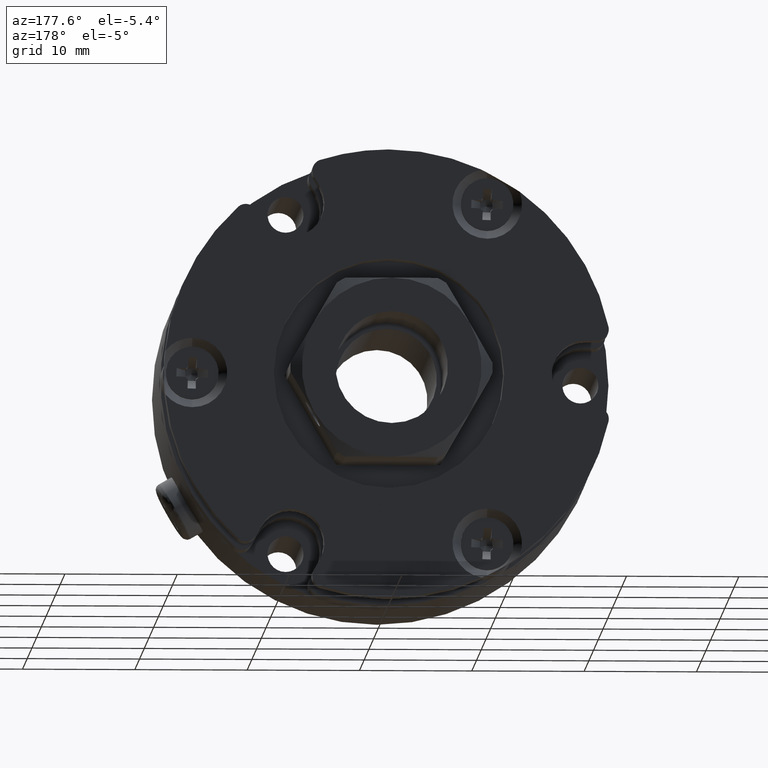
[diagram: clean part render]
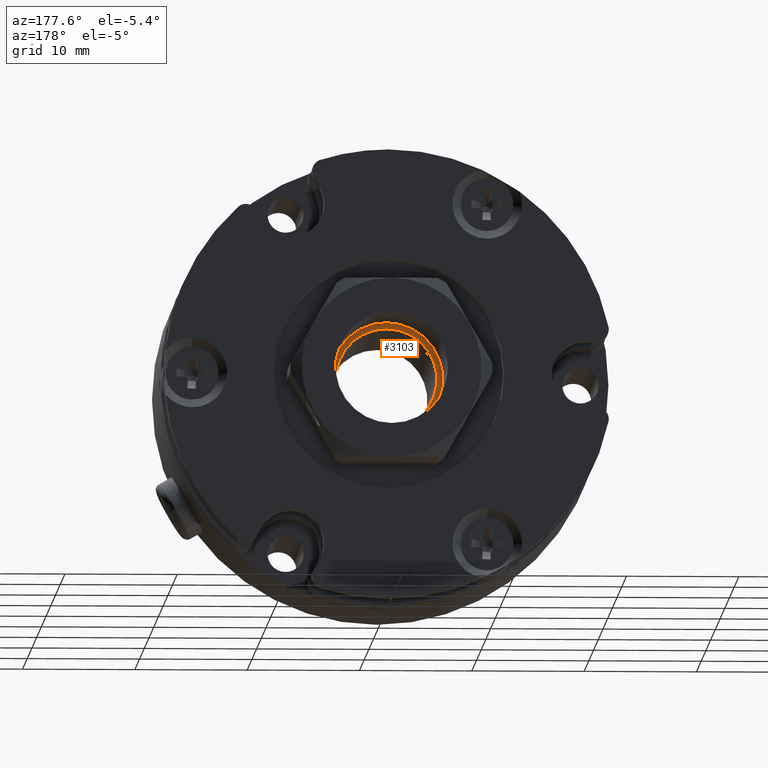
[diagram: same view with one face highlighted and labeled with its STEP entity id]
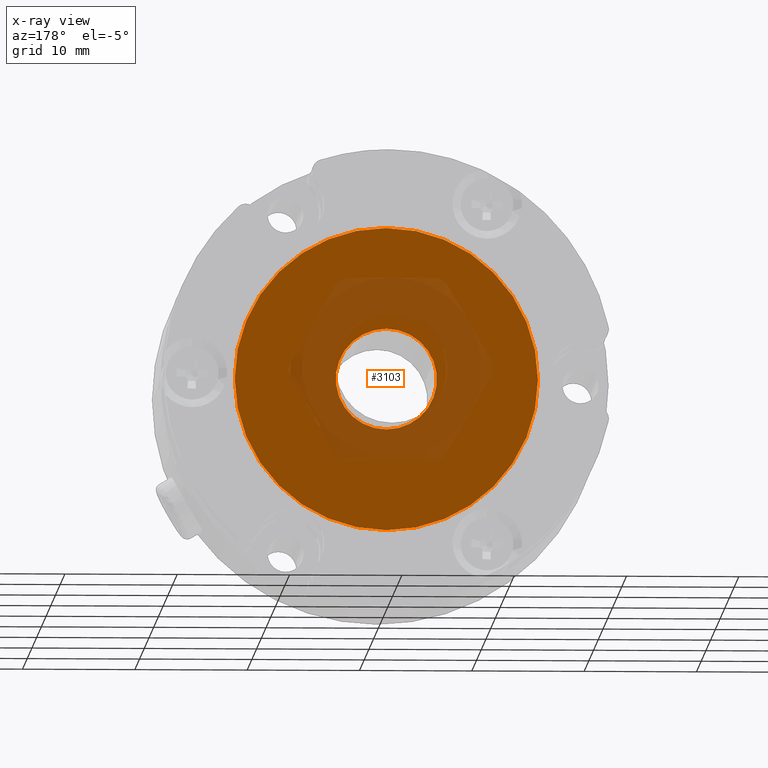
[diagram: x-ray of the same camera — body ghosted, the highlighted face saturated]
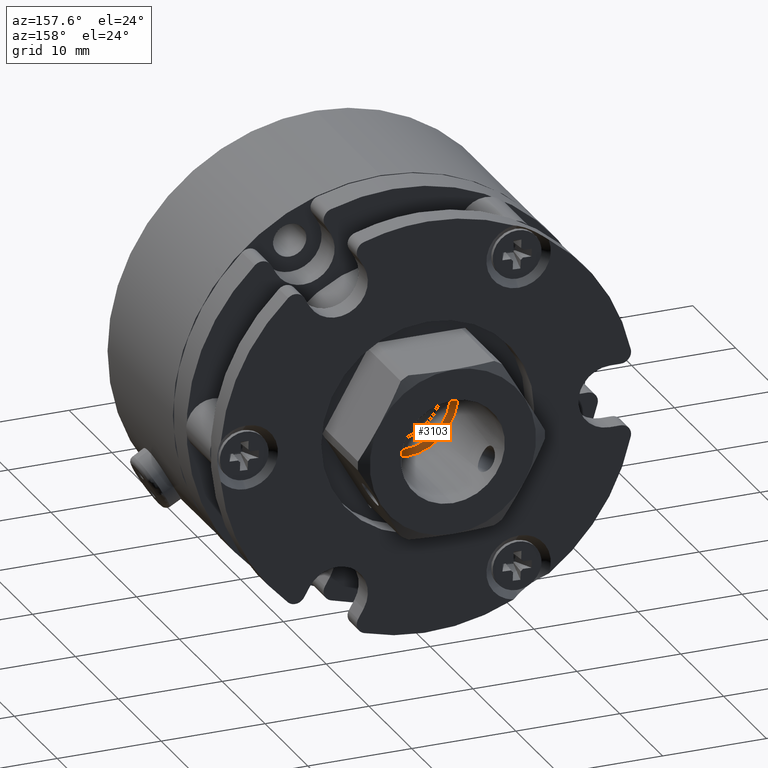
[diagram: same view with one face highlighted and labeled with its STEP entity id]
A machine part, auxiliary view. The second image highlights one B-rep face of the part: STEP entity #3103.
The next image is the same camera in x-ray: the body ghosted, the highlighted face saturated — about 30% of this face is hidden behind the body in this view.
A second angle (auxiliary view) of the same face is appended — the face is thin or edge-on in the first view.
In plain terms, the highlighted planar face has unit normal (-0, -1, -0).
Its self-contained STEP definition (entity closure, byte-faithful):
#203 = VERTEX_POINT ( 'NONE', #630 ) ;
#630 = CARTESIAN_POINT ( 'NONE',  ( -0.1489901573797435264, -66.53216099891336910, 4.798337758955794285 ) ) ;
#704 = CARTESIAN_POINT ( 'NONE',  ( -0.1489901573797430268, -66.53216099891336910, -4.201662241044211932 ) ) ;
#812 = CARTESIAN_POINT ( 'NONE',  ( -0.1489901573797435264, -66.53216099891336910, 0.2983377589557918985 ) ) ;
#817 = FACE_OUTER_BOUND ( 'NONE', #3424, .T. ) ;
#826 = CARTESIAN_POINT ( 'NONE',  ( -0.1489901573797435264, -66.53216099891336910, 0.2983377589557918985 ) ) ;
#1338 = CARTESIAN_POINT ( 'NONE',  ( -0.1489901573797435264, -66.53216099891336910, 0.2983377589557918985 ) ) ;
#1957 = FACE_BOUND ( 'NONE', #5541, .T. ) ;
#1997 = AXIS2_PLACEMENT_3D ( 'NONE', #812, #7268, #5888 ) ;
#2229 = PLANE ( 'NONE',  #7047 ) ;
#2289 = CARTESIAN_POINT ( 'NONE',  ( -0.1489901573797418888, -66.53216099891336910, -13.20166224104421460 ) ) ;
#2465 = DIRECTION ( 'NONE',  ( 0.0000000000000000000, 6.123233995736565123E-17, -1.000000000000000000 ) ) ;
#2779 = ORIENTED_EDGE ( 'NONE', *, *, #3633, .T. ) ;
#2952 = ORIENTED_EDGE ( 'NONE', *, *, #2974, .F. ) ;
#2974 = EDGE_CURVE ( 'NONE', #6871, #6878, #7246, .T. ) ;
#3103 = ADVANCED_FACE ( 'NONE', ( #1957, #817 ), #2229, .F. ) ;
#3424 = EDGE_LOOP ( 'NONE', ( #2952, #5924 ) ) ;
#3518 = ORIENTED_EDGE ( 'NONE', *, *, #8020, .T. ) ;
#3633 = EDGE_CURVE ( 'NONE', #203, #7904, #3715, .T. ) ;
#3715 = CIRCLE ( 'NONE', #8579, 4.500000000000003553 ) ;
#3893 = AXIS2_PLACEMENT_3D ( 'NONE', #8600, #5667, #6372 ) ;
#5025 = EDGE_CURVE ( 'NONE', #6878, #6871, #5079, .T. ) ;
#5079 = CIRCLE ( 'NONE', #7869, 13.50000000000000711 ) ;
#5541 = EDGE_LOOP ( 'NONE', ( #2779, #3518 ) ) ;
#5667 = DIRECTION ( 'NONE',  ( -1.963197694344359005E-17, -1.000000000000000000, -6.123233995736878202E-17 ) ) ;
#5705 = DIRECTION ( 'NONE',  ( -1.963197694344359005E-17, -1.000000000000000000, -6.123233995736878202E-17 ) ) ;
#5771 = DIRECTION ( 'NONE',  ( -1.963197694344359005E-17, -1.000000000000000000, -6.123233995736878202E-17 ) ) ;
#5861 = CARTESIAN_POINT ( 'NONE',  ( -0.1489901573797417778, -66.53216099891336910, 0.2983377589557948961 ) ) ;
#5888 = DIRECTION ( 'NONE',  ( 0.0000000000000000000, 0.0000000000000000000, 1.000000000000000000 ) ) ;
#5924 = ORIENTED_EDGE ( 'NONE', *, *, #5025, .F. ) ;
#6372 = DIRECTION ( 'NONE',  ( 0.0000000000000000000, 0.0000000000000000000, 1.000000000000000000 ) ) ;
#6871 = VERTEX_POINT ( 'NONE', #8845 ) ;
#6878 = VERTEX_POINT ( 'NONE', #2289 ) ;
#7047 = AXIS2_PLACEMENT_3D ( 'NONE', #5861, #7375, #2465 ) ;
#7246 = CIRCLE ( 'NONE', #3893, 13.50000000000000711 ) ;
#7268 = DIRECTION ( 'NONE',  ( -1.963197694344359005E-17, -1.000000000000000000, -6.123233995736878202E-17 ) ) ;
#7375 = DIRECTION ( 'NONE',  ( -1.963197694344906894E-17, -1.000000000000000000, -6.123233995736565123E-17 ) ) ;
#7869 = AXIS2_PLACEMENT_3D ( 'NONE', #826, #5771, #8646 ) ;
#7904 = VERTEX_POINT ( 'NONE', #704 ) ;
#8020 = EDGE_CURVE ( 'NONE', #7904, #203, #9245, .T. ) ;
#8579 = AXIS2_PLACEMENT_3D ( 'NONE', #1338, #5705, #9149 ) ;
#8600 = CARTESIAN_POINT ( 'NONE',  ( -0.1489901573797435264, -66.53216099891336910, 0.2983377589557918985 ) ) ;
#8646 = DIRECTION ( 'NONE',  ( 0.0000000000000000000, 0.0000000000000000000, 1.000000000000000000 ) ) ;
#8845 = CARTESIAN_POINT ( 'NONE',  ( -0.1489901573797435264, -66.53216099891336910, 13.79833775895579784 ) ) ;
#9149 = DIRECTION ( 'NONE',  ( 0.0000000000000000000, 0.0000000000000000000, 1.000000000000000000 ) ) ;
#9245 = CIRCLE ( 'NONE', #1997, 4.500000000000003553 ) ;